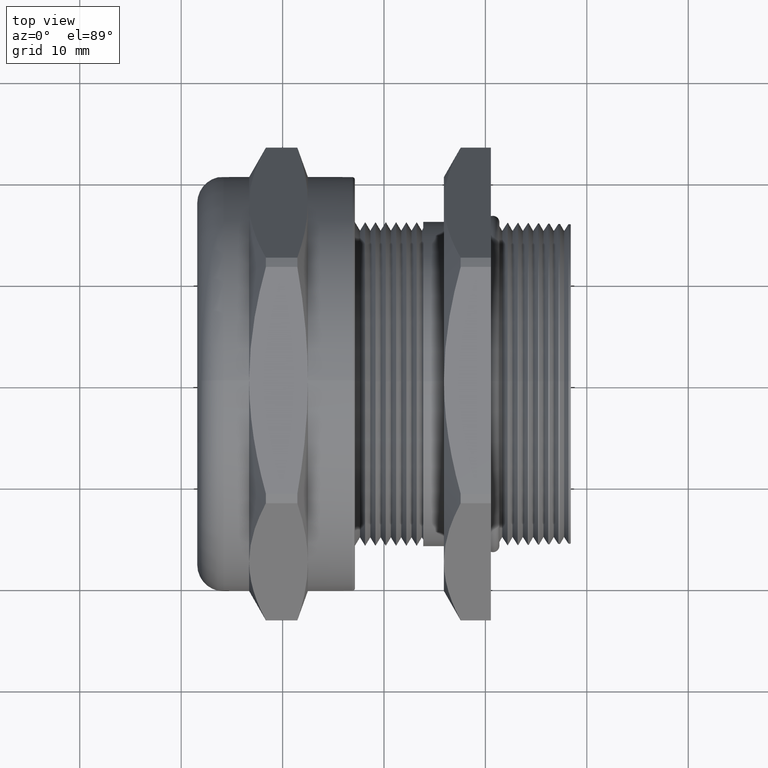
[diagram: clean part render]
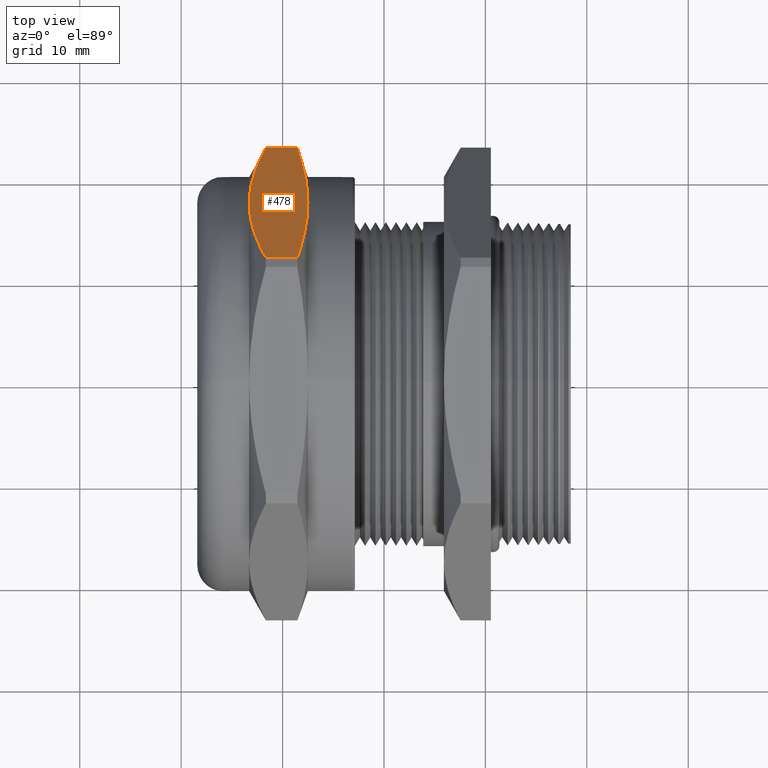
[diagram: same view with one face highlighted and labeled with its STEP entity id]
A machine part, top view. The second image highlights one B-rep face of the part: STEP entity #478.
In plain terms, the highlighted planar face has unit normal (0, 0.866, 0.5).
Its self-contained STEP definition (entity closure, byte-faithful):
#149 = VERTEX_POINT ( 'NONE', #1654 ) ;
#170 = VERTEX_POINT ( 'NONE', #1675 ) ;
#412 = VERTEX_POINT ( 'NONE', #2165 ) ;
#432 = VERTEX_POINT ( 'NONE', #2194 ) ;
#453 = VERTEX_POINT ( 'NONE', #2264 ) ;
#455 = EDGE_CURVE ( 'NONE', #453, #412, #2263, .T. ) ;
#459 = ORIENTED_EDGE ( 'NONE', *, *, #461, .T. ) ;
#460 = EDGE_CURVE ( 'NONE', #149, #412, #2259, .T. ) ;
#461 = EDGE_CURVE ( 'NONE', #432, #149, #2311, .T. ) ;
#462 = EDGE_CURVE ( 'NONE', #463, #432, #2310, .T. ) ;
#463 = VERTEX_POINT ( 'NONE', #2300 ) ;
#464 = EDGE_LOOP ( 'NONE', ( #465, #459, #466, #629, #630, #632 ) ) ;
#465 = ORIENTED_EDGE ( 'NONE', *, *, #462, .T. ) ;
#466 = ORIENTED_EDGE ( 'NONE', *, *, #460, .T. ) ;
#478 = ADVANCED_FACE ( 'NONE', ( #2344 ), #2343, .T. ) ;
#629 = ORIENTED_EDGE ( 'NONE', *, *, #455, .F. ) ;
#630 = ORIENTED_EDGE ( 'NONE', *, *, #631, .T. ) ;
#631 = EDGE_CURVE ( 'NONE', #453, #170, #2665, .T. ) ;
#632 = ORIENTED_EDGE ( 'NONE', *, *, #633, .T. ) ;
#633 = EDGE_CURVE ( 'NONE', #170, #463, #2657, .T. ) ;
#1654 = CARTESIAN_POINT ( 'NONE',  ( -0.2954999999999998700, 0.6971504500464730200, 0.4025000000000000800 ) ) ;
#1675 = CARTESIAN_POINT ( 'NONE',  ( -0.5234999999999998500, 0.6971504500464730200, 0.4025000000000000200 ) ) ;
#2165 = CARTESIAN_POINT ( 'NONE',  ( -0.3365194454018005700, 0.9174617581992777800, 0.02090962079737898600 ) ) ;
#2194 = CARTESIAN_POINT ( 'NONE',  ( -0.3365194454018005700, 0.4768391418936685500, 0.7840903792026210400 ) ) ;
#2257 = CARTESIAN_POINT ( 'NONE',  ( -0.2954999999999997600, 0.7338690014052734500, 0.3389016034662296600 ) ) ;
#2258 = CARTESIAN_POINT ( 'NONE',  ( -0.2954999999999998700, 0.6971504500464730200, 0.4025000000000000800 ) ) ;
#2259 = B_SPLINE_CURVE_WITH_KNOTS ( 'NONE', 3,
 ( #2258, #2257, #2315, #2314, #2313, #2312 ),
 .UNSPECIFIED., .F., .F.,
 ( 4, 2, 4 ),
 ( 0.01119204539427014500, 0.01678795262135138500, 0.02238385984843262500 ),
 .UNSPECIFIED. ) ;
#2260 = DIRECTION ( 'NONE',  ( 1.000000000000000000, 0.0000000000000000000, 0.0000000000000000000 ) ) ;
#2261 = VECTOR ( 'NONE', #2260, 39.37007874015748100 ) ;
#2262 = CARTESIAN_POINT ( 'NONE',  ( -3.145104048103374500, 0.9174617581992775600, 0.02090962079737898300 ) ) ;
#2263 = LINE ( 'NONE', #2262, #2261 ) ;
#2264 = CARTESIAN_POINT ( 'NONE',  ( -0.4584326246623294200, 0.9174617581992775600, 0.02090962079737899000 ) ) ;
#2300 = CARTESIAN_POINT ( 'NONE',  ( -0.4584326246623293100, 0.4768391418936685500, 0.7840903792026209200 ) ) ;
#2301 = DIRECTION ( 'NONE',  ( 1.000000000000000000, 0.0000000000000000000, 0.0000000000000000000 ) ) ;
#2302 = VECTOR ( 'NONE', #2301, 39.37007874015748100 ) ;
#2303 = CARTESIAN_POINT ( 'NONE',  ( -0.2954999999999998700, 0.6971504500464730200, 0.4025000000000000800 ) ) ;
#2304 = CARTESIAN_POINT ( 'NONE',  ( -0.2954999999999998700, 0.6604318986876721600, 0.4660983965337702200 ) ) ;
#2305 = CARTESIAN_POINT ( 'NONE',  ( -0.2992189197839802400, 0.6237133473288714000, 0.5296967930675402500 ) ) ;
#2306 = CARTESIAN_POINT ( 'NONE',  ( -0.3133302604289631100, 0.5502762446112700000, 0.6568935861350807500 ) ) ;
#2307 = CARTESIAN_POINT ( 'NONE',  ( -0.3236858762263832300, 0.5135576932524691400, 0.7204919826688506200 ) ) ;
#2308 = CARTESIAN_POINT ( 'NONE',  ( -0.3365194454018005700, 0.4768391418936685500, 0.7840903792026210400 ) ) ;
#2309 = CARTESIAN_POINT ( 'NONE',  ( -3.145104048103374500, 0.4768391418936684400, 0.7840903792026209200 ) ) ;
#2310 = LINE ( 'NONE', #2309, #2302 ) ;
#2311 = B_SPLINE_CURVE_WITH_KNOTS ( 'NONE', 3,
 ( #2308, #2307, #2306, #2305, #2304, #2303 ),
 .UNSPECIFIED., .F., .F.,
 ( 4, 2, 4 ),
 ( 2.309401076740175100E-007, 0.005596138167188909900, 0.01119204539427014500 ),
 .UNSPECIFIED. ) ;
#2312 = CARTESIAN_POINT ( 'NONE',  ( -0.3365194454018005700, 0.9174617581992777800, 0.02090962079737898600 ) ) ;
#2313 = CARTESIAN_POINT ( 'NONE',  ( -0.3236858762263834000, 0.8807432068404769100, 0.08450801733114908500 ) ) ;
#2314 = CARTESIAN_POINT ( 'NONE',  ( -0.3133302604289631100, 0.8440246554816759300, 0.1481064138649191800 ) ) ;
#2315 = CARTESIAN_POINT ( 'NONE',  ( -0.2992189197839802400, 0.7705875527640745300, 0.2753032069324596300 ) ) ;
#2339 = DIRECTION ( 'NONE',  ( 0.0000000000000000000, -0.5000000000000000000, 0.8660254037844386000 ) ) ;
#2340 = DIRECTION ( 'NONE',  ( 0.0000000000000000000, 0.8660254037844387100, 0.5000000000000001100 ) ) ;
#2341 = CARTESIAN_POINT ( 'NONE',  ( -3.145104048103374500, 0.9174617581992775600, 0.02090962079737901700 ) ) ;
#2342 = AXIS2_PLACEMENT_3D ( 'NONE', #2341, #2340, #2339 ) ;
#2343 = PLANE ( 'NONE',  #2342 ) ;
#2344 = FACE_OUTER_BOUND ( 'NONE', #464, .T. ) ;
#2647 = CARTESIAN_POINT ( 'NONE',  ( -0.4584326246623293100, 0.4768391418936685500, 0.7840903792026209200 ) ) ;
#2648 = CARTESIAN_POINT ( 'NONE',  ( -0.4783867082804194600, 0.5128303451596885100, 0.7217517865203350000 ) ) ;
#2649 = CARTESIAN_POINT ( 'NONE',  ( -0.4947510405005171600, 0.5491175619668304800, 0.6589004833450981000 ) ) ;
#2650 = CARTESIAN_POINT ( 'NONE',  ( -0.5116989413516661600, 0.6041749731156608200, 0.5635382499021149800 ) ) ;
#2651 = CARTESIAN_POINT ( 'NONE',  ( -0.5160794978735944200, 0.6226320650425677400, 0.5315696289247425800 ) ) ;
#2652 = CARTESIAN_POINT ( 'NONE',  ( -0.5219849548351257500, 0.6597817283977278600, 0.4672245245095256700 ) ) ;
#2653 = CARTESIAN_POINT ( 'NONE',  ( -0.5234999999999999700, 0.6785372933080842100, 0.4347389331601322900 ) ) ;
#2654 = CARTESIAN_POINT ( 'NONE',  ( -0.5234999999999998500, 0.6971504500464730200, 0.4025000000000000200 ) ) ;
#2657 = B_SPLINE_CURVE_WITH_KNOTS ( 'NONE', 3,
 ( #2654, #2653, #2652, #2651, #2650, #2649, #2648, #2647 ),
 .UNSPECIFIED., .F., .F.,
 ( 4, 2, 2, 4 ),
 ( 0.01131174950541887600, 0.01412467415539784100, 0.01693759880537680500, 0.02256344810533474100 ),
 .UNSPECIFIED. ) ;
#2659 = CARTESIAN_POINT ( 'NONE',  ( -0.5234999999999998500, 0.6971504500464730200, 0.4025000000000000200 ) ) ;
#2660 = CARTESIAN_POINT ( 'NONE',  ( -0.5234999999999999700, 0.7345746572989609900, 0.3376793716057033300 ) ) ;
#2661 = CARTESIAN_POINT ( 'NONE',  ( -0.5173836876602063700, 0.7716008759901021900, 0.2735480796204898300 ) ) ;
#2662 = CARTESIAN_POINT ( 'NONE',  ( -0.4948306772406400600, 0.8449817656741955800, 0.1464486503830338700 ) ) ;
#2663 = CARTESIAN_POINT ( 'NONE',  ( -0.4784587296096024500, 0.8813406499800888700, 0.08347321545870722800 ) ) ;
#2664 = CARTESIAN_POINT ( 'NONE',  ( -0.4584326246623294200, 0.9174617581992775600, 0.02090962079737899000 ) ) ;
#2665 = B_SPLINE_CURVE_WITH_KNOTS ( 'NONE', 3,
 ( #2664, #2663, #2662, #2661, #2660, #2659 ),
 .UNSPECIFIED., .F., .F.,
 ( 4, 2, 4 ),
 ( 2.372707071714017500E-007, 0.005655993388063023300, 0.01131174950541887600 ),
 .UNSPECIFIED. ) ;